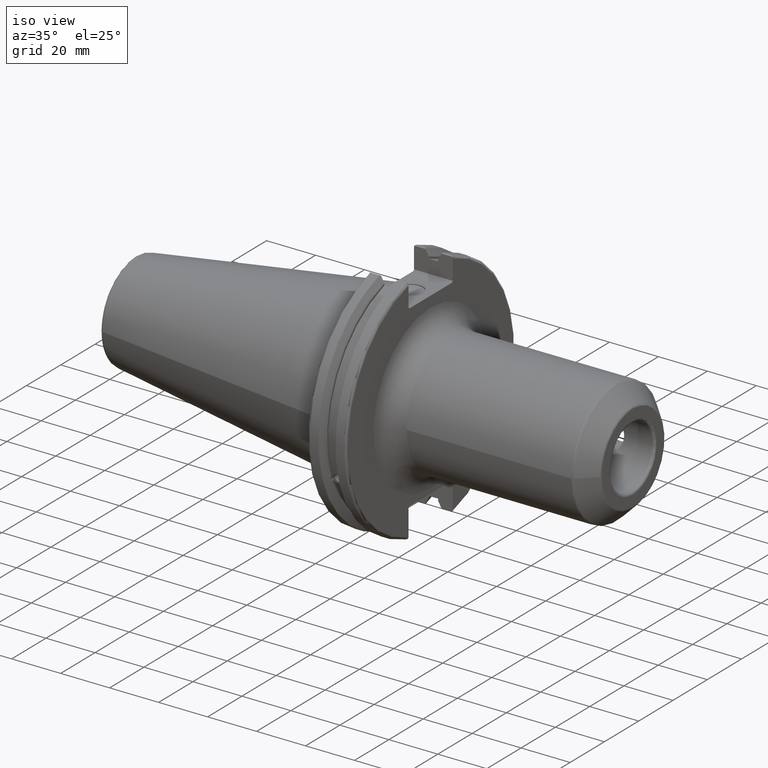
[diagram: clean part render]
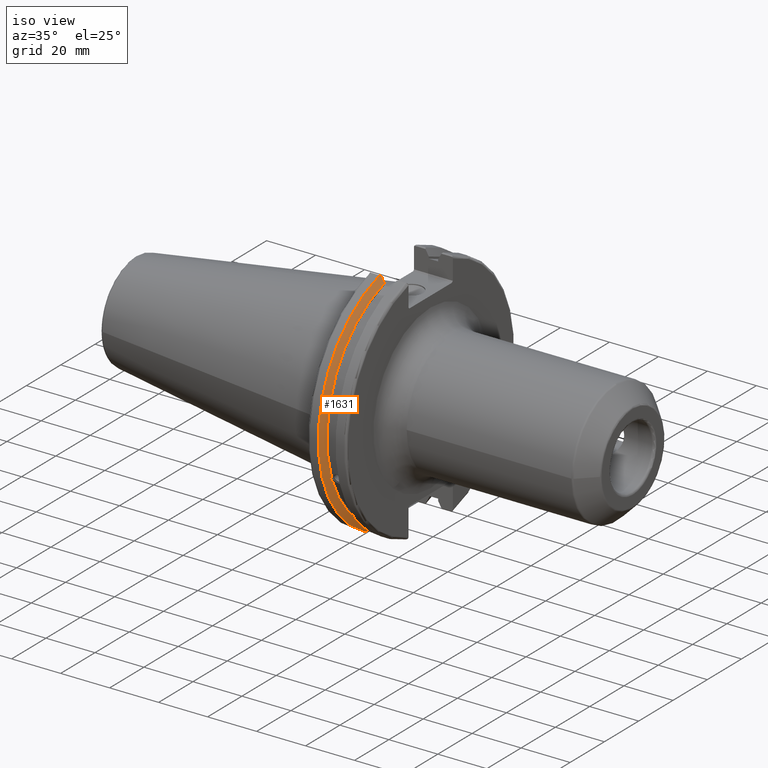
[diagram: same view with one face highlighted and labeled with its STEP entity id]
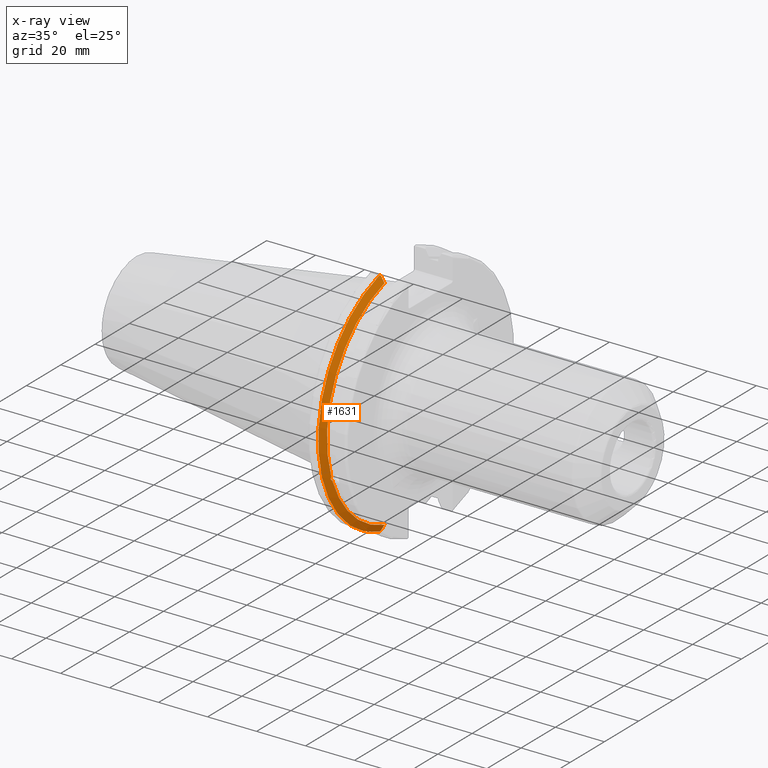
[diagram: x-ray of the same camera — body ghosted, the highlighted face saturated]
A machine part, iso view. The second image highlights one B-rep face of the part: STEP entity #1631.
The next image is the same camera in x-ray: the body ghosted, the highlighted face saturated — about 0% of this face is hidden behind the body in this view.
In plain terms, the highlighted conical surface has half-angle 60 deg.
Its self-contained STEP definition (entity closure, byte-faithful):
#24=(
BOUNDED_CURVE()
B_SPLINE_CURVE(2,(#3211,#3212,#3213),.UNSPECIFIED.,.F.,.F.)
B_SPLINE_CURVE_WITH_KNOTS((3,3),(0.,0.275823910673799),.UNSPECIFIED.)
CURVE()
GEOMETRIC_REPRESENTATION_ITEM()
RATIONAL_B_SPLINE_CURVE((1.,1.00038235574547,1.00012873636808))
REPRESENTATION_ITEM('')
);
#25=(
BOUNDED_CURVE()
B_SPLINE_CURVE(2,(#3223,#3224,#3225),.UNSPECIFIED.,.F.,.F.)
B_SPLINE_CURVE_WITH_KNOTS((3,3),(0.0558332664508419,0.331657177124507),
 .UNSPECIFIED.)
CURVE()
GEOMETRIC_REPRESENTATION_ITEM()
RATIONAL_B_SPLINE_CURVE((1.00012873636699,1.00038235574223,1.))
REPRESENTATION_ITEM('')
);
#26=(
BOUNDED_CURVE()
B_SPLINE_CURVE(2,(#3258,#3259,#3260),.UNSPECIFIED.,.F.,.F.)
B_SPLINE_CURVE_WITH_KNOTS((3,3),(0.,0.064824047289869),.UNSPECIFIED.)
CURVE()
GEOMETRIC_REPRESENTATION_ITEM()
RATIONAL_B_SPLINE_CURVE((1.,1.00011477674823,1.00019140645925))
REPRESENTATION_ITEM('')
);
#27=(
BOUNDED_CURVE()
B_SPLINE_CURVE(2,(#3266,#3267,#3268),.UNSPECIFIED.,.F.,.F.)
B_SPLINE_CURVE_WITH_KNOTS((3,3),(0.325260944932363,0.390084992222202),
 .UNSPECIFIED.)
CURVE()
GEOMETRIC_REPRESENTATION_ITEM()
RATIONAL_B_SPLINE_CURVE((1.00019140645909,1.00011477674813,1.))
REPRESENTATION_ITEM('')
);
#54=CONICAL_SURFACE('',#1821,47.8172386482472,1.0471975511966);
#201=FACE_OUTER_BOUND('',#316,.T.);
#316=EDGE_LOOP('',(#1473,#1474,#1475,#1476,#1477,#1478,#1479,#1480));
#348=B_SPLINE_CURVE_WITH_KNOTS('',3,(#2745,#2746,#2747,#2748,#2749,#2750,
#2751,#2752,#2753,#2754,#2755,#2756,#2757,#2758),.UNSPECIFIED.,.F.,.F.,
(4,2,2,2,2,2,4),(0.426712868358719,0.441644498666907,0.480313313223131,
0.518982127779354,0.557650942335578,0.596319756891801,0.611251387199989),
 .UNSPECIFIED.);
#602=CIRCLE('',#1736,46.4219772964944);
#626=CIRCLE('',#1787,49.2125);
#638=CIRCLE('',#1822,46.4219772964944);
#701=VERTEX_POINT('',#2742);
#702=VERTEX_POINT('',#2744);
#719=VERTEX_POINT('',#2835);
#781=VERTEX_POINT('',#3208);
#782=VERTEX_POINT('',#3210);
#785=VERTEX_POINT('',#3222);
#789=VERTEX_POINT('',#3256);
#790=VERTEX_POINT('',#3262);
#879=EDGE_CURVE('',#702,#701,#348,.T.);
#902=EDGE_CURVE('',#702,#719,#602,.T.);
#986=EDGE_CURVE('',#782,#781,#24,.T.);
#992=EDGE_CURVE('',#785,#719,#25,.T.);
#1000=EDGE_CURVE('',#789,#781,#26,.T.);
#1002=EDGE_CURVE('',#789,#790,#626,.T.);
#1003=EDGE_CURVE('',#785,#790,#27,.T.);
#1036=EDGE_CURVE('',#782,#701,#638,.T.);
#1473=ORIENTED_EDGE('',*,*,#879,.T.);
#1474=ORIENTED_EDGE('',*,*,#1036,.F.);
#1475=ORIENTED_EDGE('',*,*,#986,.T.);
#1476=ORIENTED_EDGE('',*,*,#1000,.F.);
#1477=ORIENTED_EDGE('',*,*,#1002,.T.);
#1478=ORIENTED_EDGE('',*,*,#1003,.F.);
#1479=ORIENTED_EDGE('',*,*,#992,.T.);
#1480=ORIENTED_EDGE('',*,*,#902,.F.);
#1631=ADVANCED_FACE('',(#201),#54,.T.);
#1736=AXIS2_PLACEMENT_3D('',#2836,#2013,#2014);
#1787=AXIS2_PLACEMENT_3D('',#3264,#2160,#2161);
#1821=AXIS2_PLACEMENT_3D('',#3361,#2243,#2244);
#1822=AXIS2_PLACEMENT_3D('',#3362,#2245,#2246);
#2013=DIRECTION('center_axis',(1.,0.,0.));
#2014=DIRECTION('ref_axis',(0.,0.,-1.));
#2160=DIRECTION('center_axis',(1.,0.,0.));
#2161=DIRECTION('ref_axis',(0.,0.,-1.));
#2243=DIRECTION('center_axis',(-1.,0.,0.));
#2244=DIRECTION('ref_axis',(0.,-1.,-1.22464679914735E-16));
#2245=DIRECTION('center_axis',(1.,0.,0.));
#2246=DIRECTION('ref_axis',(0.,0.,-1.));
#2742=CARTESIAN_POINT('',(9.2191,-43.9096390749305,-15.0646464421033));
#2744=CARTESIAN_POINT('',(9.2191,-43.3201030900029,-16.684383248648));
#2745=CARTESIAN_POINT('Ctrl Pts',(9.2191,-43.3201030900029,-16.6843832486479));
#2746=CARTESIAN_POINT('Ctrl Pts',(9.20211843903392,-43.3613106941341,-16.6592273018006));
#2747=CARTESIAN_POINT('Ctrl Pts',(9.18608675403322,-43.4012416983557,-16.6326763251437));
#2748=CARTESIAN_POINT('Ctrl Pts',(9.13238673845037,-43.5391037343221,-16.5325130832406));
#2749=CARTESIAN_POINT('Ctrl Pts',(9.09621610663555,-43.6406982153491,-16.4411807953719));
#2750=CARTESIAN_POINT('Ctrl Pts',(9.04690868251975,-43.8110833825827,-16.2291323464527));
#2751=CARTESIAN_POINT('Ctrl Pts',(9.0341,-43.8794096049168,-16.10796730316));
#2752=CARTESIAN_POINT('Ctrl Pts',(9.0341,-43.9675796948952,-15.8657219718732));
#2753=CARTESIAN_POINT('Ctrl Pts',(9.04690868251975,-43.9931221605125,-15.7289849146254));
#2754=CARTESIAN_POINT('Ctrl Pts',(9.09621610663555,-43.9989016655819,-15.4570249042868));
#2755=CARTESIAN_POINT('Ctrl Pts',(9.13238673845037,-43.9797830409458,-15.3217566390708));
#2756=CARTESIAN_POINT('Ctrl Pts',(9.18608675403322,-43.9385582852181,-15.1564111356409));
#2757=CARTESIAN_POINT('Ctrl Pts',(9.20211843903392,-43.9250360001461,-15.1104047527575));
#2758=CARTESIAN_POINT('Ctrl Pts',(9.2191,-43.9096390749305,-15.0646464421033));
#2835=CARTESIAN_POINT('',(9.2191,-12.95,-44.5791147973604));
#2836=CARTESIAN_POINT('Origin',(9.2191,0.,0.));
#3208=CARTESIAN_POINT('',(7.88638960562424,-12.95,46.9780755322918));
#3210=CARTESIAN_POINT('',(9.2191,-12.95,44.5791147973604));
#3211=CARTESIAN_POINT('Ctrl Pts',(9.2191,-12.95,44.5791147973604));
#3212=CARTESIAN_POINT('Ctrl Pts',(8.57020449054213,-12.95,45.7494966802443));
#3213=CARTESIAN_POINT('Ctrl Pts',(7.88638960562424,-12.95,46.9780755322918));
#3222=CARTESIAN_POINT('',(7.88638960562425,-12.95,-46.9780755322917));
#3223=CARTESIAN_POINT('Ctrl Pts',(7.88638960562425,-12.95,-46.9780755322917));
#3224=CARTESIAN_POINT('Ctrl Pts',(8.5702044905427,-12.95,-45.7494966802433));
#3225=CARTESIAN_POINT('Ctrl Pts',(9.2191,-12.95,-44.5791147973604));
#3256=CARTESIAN_POINT('',(7.60799096595127,-13.4317035994433,47.3440544806494));
#3258=CARTESIAN_POINT('Ctrl Pts',(7.60799096595127,-13.4317035994433,47.3440544806494));
#3259=CARTESIAN_POINT('Ctrl Pts',(7.74826896663813,-13.1896660169967,47.1601640966265));
#3260=CARTESIAN_POINT('Ctrl Pts',(7.88638960562424,-12.95,46.9780755322918));
#3262=CARTESIAN_POINT('',(7.60799096595127,-13.4317035994433,-47.3440544806494));
#3264=CARTESIAN_POINT('Origin',(7.60799096595127,0.,0.));
#3266=CARTESIAN_POINT('Ctrl Pts',(7.88638960562425,-12.95,-46.9780755322917));
#3267=CARTESIAN_POINT('Ctrl Pts',(7.74826896663813,-13.1896660169967,-47.1601640966265));
#3268=CARTESIAN_POINT('Ctrl Pts',(7.60799096595127,-13.4317035994433,-47.3440544806494));
#3361=CARTESIAN_POINT('Origin',(8.41354548297563,0.,0.));
#3362=CARTESIAN_POINT('Origin',(9.2191,0.,0.));